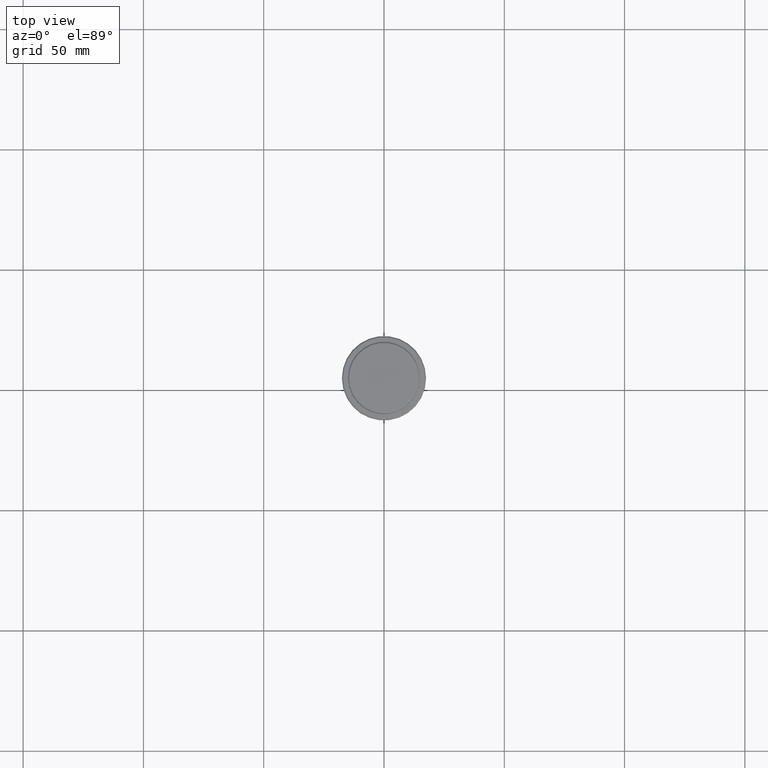
[diagram: clean part render]
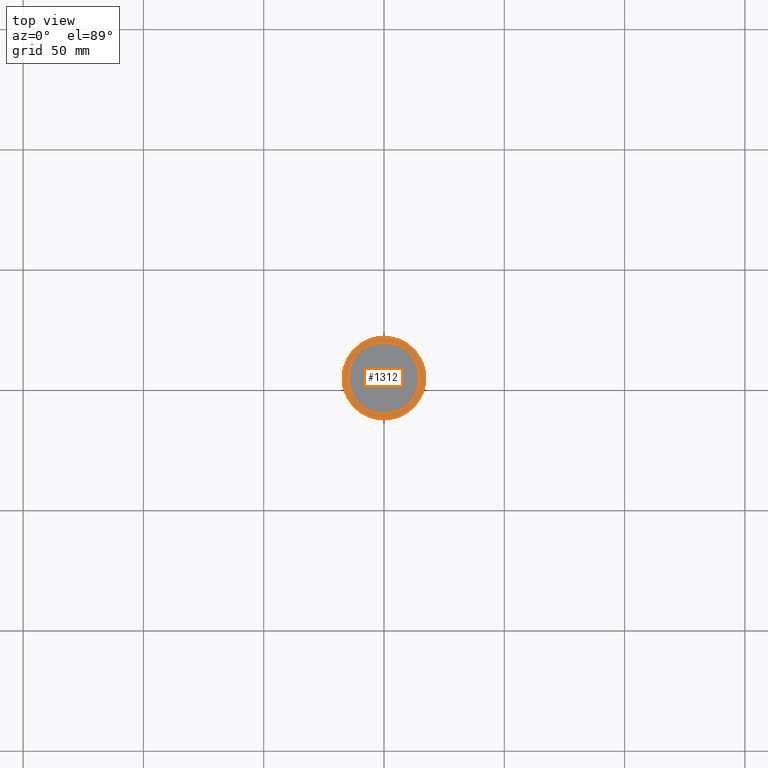
[diagram: same view with one face highlighted and labeled with its STEP entity id]
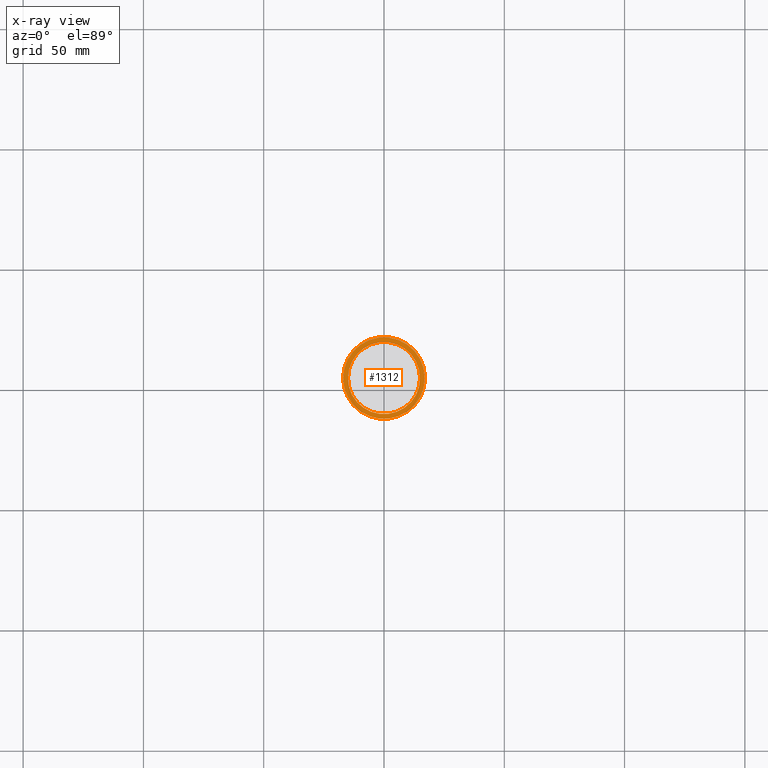
[diagram: x-ray of the same camera — body ghosted, the highlighted face saturated]
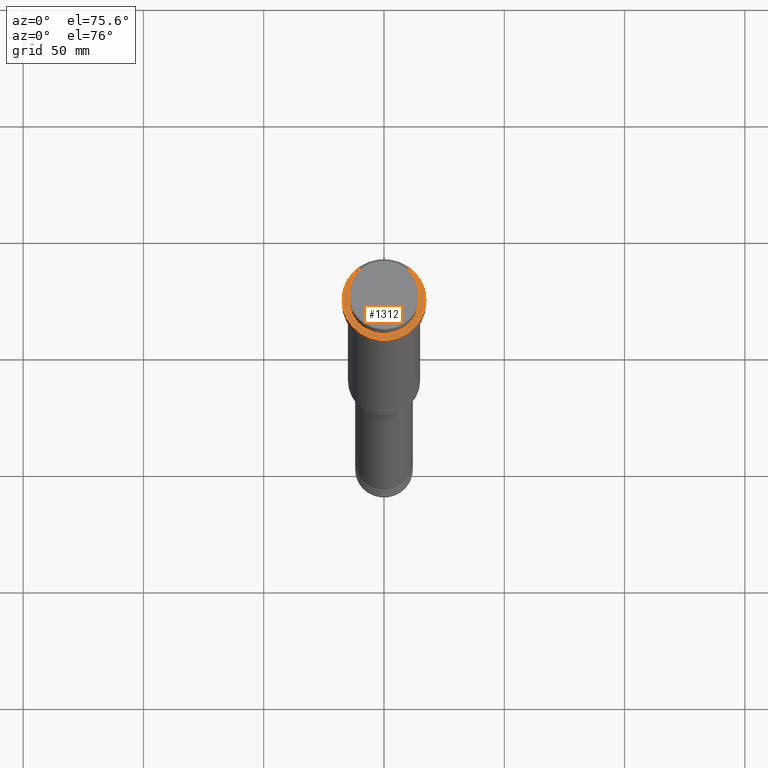
[diagram: same view with one face highlighted and labeled with its STEP entity id]
A machine part, top view. The second image highlights one B-rep face of the part: STEP entity #1312.
The next image is the same camera in x-ray: the body ghosted, the highlighted face saturated — about 0% of this face is hidden behind the body in this view.
A second angle (auxiliary view) of the same face is appended — the face is thin or edge-on in the first view.
In plain terms, the highlighted planar face has unit normal (0, -0, 1).
Its self-contained STEP definition (entity closure, byte-faithful):
#34 = EDGE_CURVE ( 'NONE', #1267, #734, #421, .T. ) ;
#79 = EDGE_CURVE ( 'NONE', #356, #284, #289, .T. ) ;
#94 = CARTESIAN_POINT ( 'NONE',  ( -16.99999999999996092, 0.000000000000000000, -9.000000000000001776 ) ) ;
#117 = CARTESIAN_POINT ( 'NONE',  ( 0.000000000000000000, 0.000000000000000000, -9.000000000000001776 ) ) ;
#166 = ORIENTED_EDGE ( 'NONE', *, *, #511, .T. ) ;
#239 = DIRECTION ( 'NONE',  ( -0.000000000000000000, -0.000000000000000000, 1.000000000000000000 ) ) ;
#243 = CARTESIAN_POINT ( 'NONE',  ( -14.99999999999999467, 1.836970198721029194E-15, -9.000000000000001776 ) ) ;
#284 = VERTEX_POINT ( 'NONE', #243 ) ;
#289 = CIRCLE ( 'NONE', #1075, 14.99999999999999467 ) ;
#290 = CIRCLE ( 'NONE', #1028, 14.99999999999999467 ) ;
#312 = AXIS2_PLACEMENT_3D ( 'NONE', #117, #693, #1220 ) ;
#320 = PLANE ( 'NONE',  #1213 ) ;
#323 = FACE_BOUND ( 'NONE', #935, .T. ) ;
#343 = CARTESIAN_POINT ( 'NONE',  ( 0.000000000000000000, 0.000000000000000000, -9.000000000000001776 ) ) ;
#352 = DIRECTION ( 'NONE',  ( 0.000000000000000000, 0.000000000000000000, -1.000000000000000000 ) ) ;
#356 = VERTEX_POINT ( 'NONE', #647 ) ;
#421 = CIRCLE ( 'NONE', #312, 16.99999999999996092 ) ;
#438 = DIRECTION ( 'NONE',  ( 1.000000000000000000, 0.000000000000000000, 0.000000000000000000 ) ) ;
#446 = EDGE_CURVE ( 'NONE', #284, #356, #290, .T. ) ;
#448 = DIRECTION ( 'NONE',  ( 1.000000000000000000, 0.000000000000000000, 0.000000000000000000 ) ) ;
#472 = ORIENTED_EDGE ( 'NONE', *, *, #79, .T. ) ;
#511 = EDGE_CURVE ( 'NONE', #734, #1267, #845, .T. ) ;
#647 = CARTESIAN_POINT ( 'NONE',  ( 14.99999999999999467, 0.000000000000000000, -9.000000000000001776 ) ) ;
#654 = FACE_OUTER_BOUND ( 'NONE', #719, .T. ) ;
#693 = DIRECTION ( 'NONE',  ( -0.000000000000000000, -0.000000000000000000, 1.000000000000000000 ) ) ;
#719 = EDGE_LOOP ( 'NONE', ( #810, #166 ) ) ;
#734 = VERTEX_POINT ( 'NONE', #749 ) ;
#749 = CARTESIAN_POINT ( 'NONE',  ( 16.99999999999996092, 2.112515728529182095E-15, -9.000000000000001776 ) ) ;
#765 = DIRECTION ( 'NONE',  ( 1.000000000000000000, 0.000000000000000000, 0.000000000000000000 ) ) ;
#793 = CARTESIAN_POINT ( 'NONE',  ( 0.000000000000000000, 14.49999999999999467, -9.000000000000001776 ) ) ;
#810 = ORIENTED_EDGE ( 'NONE', *, *, #34, .T. ) ;
#845 = CIRCLE ( 'NONE', #1190, 16.99999999999996092 ) ;
#905 = DIRECTION ( 'NONE',  ( 1.000000000000000000, 0.000000000000000000, 0.000000000000000000 ) ) ;
#935 = EDGE_LOOP ( 'NONE', ( #472, #1272 ) ) ;
#1013 = CARTESIAN_POINT ( 'NONE',  ( 0.000000000000000000, 0.000000000000000000, -9.000000000000001776 ) ) ;
#1028 = AXIS2_PLACEMENT_3D ( 'NONE', #1013, #352, #905 ) ;
#1075 = AXIS2_PLACEMENT_3D ( 'NONE', #1308, #1417, #438 ) ;
#1190 = AXIS2_PLACEMENT_3D ( 'NONE', #343, #239, #448 ) ;
#1213 = AXIS2_PLACEMENT_3D ( 'NONE', #793, #1323, #765 ) ;
#1220 = DIRECTION ( 'NONE',  ( 1.000000000000000000, 0.000000000000000000, 0.000000000000000000 ) ) ;
#1267 = VERTEX_POINT ( 'NONE', #94 ) ;
#1272 = ORIENTED_EDGE ( 'NONE', *, *, #446, .T. ) ;
#1308 = CARTESIAN_POINT ( 'NONE',  ( 0.000000000000000000, 0.000000000000000000, -9.000000000000001776 ) ) ;
#1312 = ADVANCED_FACE ( 'NONE', ( #654, #323 ), #320, .T. ) ;
#1323 = DIRECTION ( 'NONE',  ( 0.000000000000000000, -0.000000000000000000, 1.000000000000000000 ) ) ;
#1417 = DIRECTION ( 'NONE',  ( 0.000000000000000000, 0.000000000000000000, -1.000000000000000000 ) ) ;